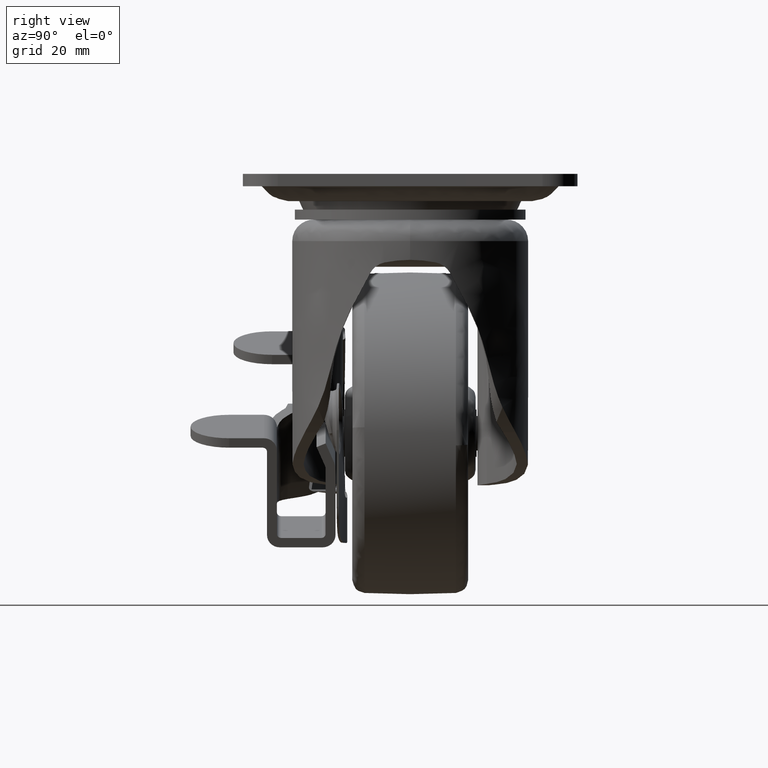
[diagram: clean part render]
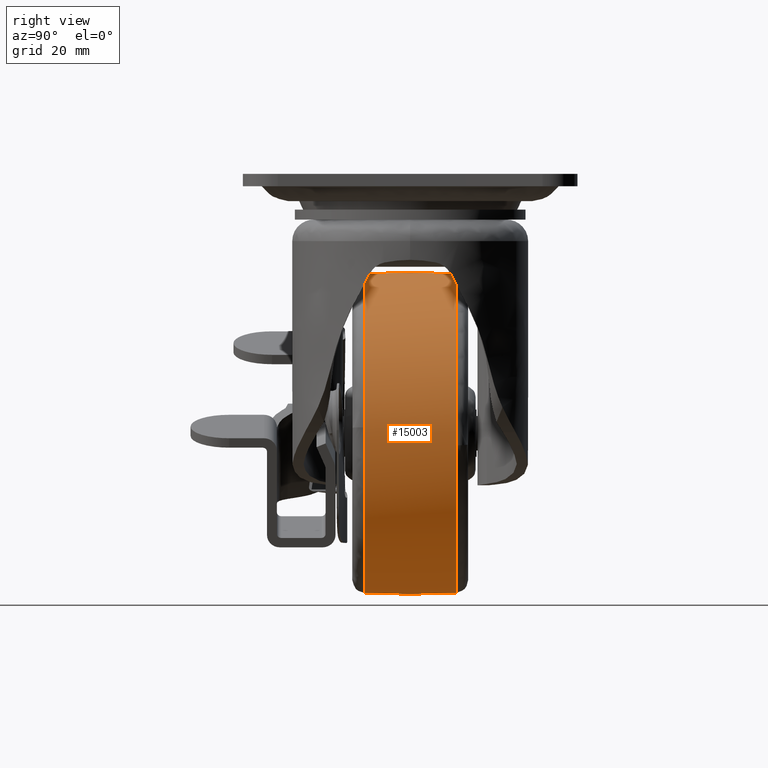
[diagram: same view with one face highlighted and labeled with its STEP entity id]
A machine part, right view. The second image highlights one B-rep face of the part: STEP entity #15003.
In plain terms, the highlighted face is a freeform B-spline surface patch.
Its self-contained STEP definition (entity closure, byte-faithful):
#13894=CARTESIAN_POINT('',(-37.109980353063378,10.659907045838009,-57.696659155735617));
#13895=VERTEX_POINT('',#13894);
#13907=CARTESIAN_POINT('',(-36.966803520436791,10.659907205023050,-56.202931402761443));
#13908=VERTEX_POINT('',#13907);
#13909=CARTESIAN_POINT('',(-36.966803520436791,10.659907205023050,-56.202931402761443));
#13910=CARTESIAN_POINT('',(-37.024561914994649,10.659907152789780,-56.699811235788317));
#13911=CARTESIAN_POINT('',(-37.072300218723868,10.659907099713701,-57.197855159017273));
#13912=CARTESIAN_POINT('',(-37.109980353063378,10.659907045838009,-57.696659155735617));
#13913=B_SPLINE_CURVE_WITH_KNOTS('',3,(#13909,#13910,#13911,#13912),.UNSPECIFIED.,.F.,.U.,(4,4),(3.163358E-011,1.500677216047689),.UNSPECIFIED.);
#13914=EDGE_CURVE('',#13908,#13895,#13913,.T.);
#13916=CARTESIAN_POINT('',(0.0,10.659905010740991,-23.284285983396082));
#13917=VERTEX_POINT('',#13916);
#13934=CARTESIAN_POINT('',(37.109980734808822,10.659901494251081,-63.303340873028922));
#13935=VERTEX_POINT('',#13934);
#13936=CARTESIAN_POINT('',(37.109980734808822,10.659901494251081,-63.303340873028922));
#13937=CARTESIAN_POINT('',(37.333079486294892,10.659901753069120,-60.360160390538610));
#13938=CARTESIAN_POINT('',(37.149999112414093,10.659902120035850,-56.186770626406883));
#13939=CARTESIAN_POINT('',(35.963578164168872,10.659902607533979,-50.641892122192097));
#13940=CARTESIAN_POINT('',(34.706324419770397,10.659902940985500,-46.848820231499921));
#13941=CARTESIAN_POINT('',(32.864471173221723,10.659903291581500,-42.860327174627280));
#13942=CARTESIAN_POINT('',(30.114503842833312,10.659903687307470,-38.357904997523050));
#13943=CARTESIAN_POINT('',(26.513733774196339,10.659904056102970,-34.161089200161918));
#13944=CARTESIAN_POINT('',(22.432330186035930,10.659904360624230,-30.694848777456109));
#13945=CARTESIAN_POINT('',(18.302557402761192,10.659904600973560,-27.958352263315302));
#13946=CARTESIAN_POINT('',(13.828081538570920,10.659904789237290,-25.813923049478539));
#13947=CARTESIAN_POINT('',(9.330976537480492,10.659904913611561,-24.396045246700201));
#13948=CARTESIAN_POINT('',(4.865995072777115,10.659904991315949,-23.508935251755840));
#13949=CARTESIAN_POINT('',(1.834728752286579,10.659905010873629,-23.284188550909189));
#13950=CARTESIAN_POINT('',(0.0,10.659905010740991,-23.284285983396082));
#13951=B_SPLINE_CURVE_WITH_KNOTS('',3,(#13936,#13937,#13938,#13939,#13940,#13941,#13942,#13943,#13944,#13945,#13946,#13947,#13948,#13949,#13950),.UNSPECIFIED.,.F.,.U.,(4,1,1,1,1,1,1,1,1,1,1,1,4),(0.000000109586594,8.854616858987242,12.444318883941101,16.991309837497202,20.820343086300419,25.606623448434590,32.785965412841954,37.332988811350802,41.640631216820502,47.623511779815772,52.170483981775618,55.760237169650523,61.264411400106383),.UNSPECIFIED.);
#13952=EDGE_CURVE('',#13935,#13917,#13951,.T.);
#14011=CARTESIAN_POINT('',(0.0,10.659898477157361,-97.715714365336495));
#14012=VERTEX_POINT('',#14011);
#14013=CARTESIAN_POINT('',(0.0,10.659898477157361,-97.715714365336495));
#14014=CARTESIAN_POINT('',(2.101449916945054,10.659898477143260,-97.715875173603891));
#14015=CARTESIAN_POINT('',(5.797050483412011,10.659898504676351,-97.401838063970928));
#14016=CARTESIAN_POINT('',(10.953802640894210,10.659898612284110,-96.174485690929743));
#14017=CARTESIAN_POINT('',(15.910820478060471,10.659898776936350,-94.296494117845455));
#14018=CARTESIAN_POINT('',(20.477781054350199,10.659899001495020,-91.735224742855522));
#14019=CARTESIAN_POINT('',(24.443800003504169,10.659899269801050,-88.674973777156424));
#14020=CARTESIAN_POINT('',(27.765499137041889,10.659899554450829,-85.428323123415154));
#14021=CARTESIAN_POINT('',(30.340675953131441,10.659899838720470,-82.185988122396026));
#14022=CARTESIAN_POINT('',(32.999949648069659,10.659900210390500,-77.946812955814181));
#14023=CARTESIAN_POINT('',(35.057201587300177,10.659900604906319,-73.447023102979799));
#14024=CARTESIAN_POINT('',(36.535003690083833,10.659901071181510,-68.128790103697156));
#14025=CARTESIAN_POINT('',(36.989944924839790,10.659901354877301,-64.893010771451415));
#14026=CARTESIAN_POINT('',(37.109980734808822,10.659901494251081,-63.303340873028922));
#14027=B_SPLINE_CURVE_WITH_KNOTS('',3,(#14013,#14014,#14015,#14016,#14017,#14018,#14019,#14020,#14021,#14022,#14023,#14024,#14025,#14026),.UNSPECIFIED.,.F.,.U.,(4,1,1,1,1,1,1,1,1,1,1,4),(0.000000092116473,6.304331871828211,11.086984801857209,15.869637154988130,22.174009474737250,26.739285945328021,30.869660891977269,36.087065070820628,39.130571816221497,45.869745436309969,50.869798589803459,55.652387787320812),.UNSPECIFIED.);
#14028=EDGE_CURVE('',#14012,#13935,#14027,.T.);
#14030=CARTESIAN_POINT('',(-37.109980353063378,10.659907045838009,-57.696659155735617));
#14031=CARTESIAN_POINT('',(-37.333090370922598,10.659906723885401,-60.639836850939332));
#14032=CARTESIAN_POINT('',(-37.139419386680061,10.659906185867291,-65.054011644045772));
#14033=CARTESIAN_POINT('',(-35.829064375242581,10.659905363087731,-70.901894559430545));
#14034=CARTESIAN_POINT('',(-34.057060963594452,10.659904595166530,-75.871247791341773));
#14035=CARTESIAN_POINT('',(-31.422402067710092,10.659903750233759,-80.729349237902753));
#14036=CARTESIAN_POINT('',(-27.918117952979269,10.659902848641289,-85.296503700673853));
#14037=CARTESIAN_POINT('',(-24.546031441335519,10.659902109290069,-88.598221263194361));
#14038=CARTESIAN_POINT('',(-20.168222094015981,10.659901259633520,-91.945186813611897));
#14039=CARTESIAN_POINT('',(-15.396747566195851,10.659900452226740,-94.581620428633087));
#14040=CARTESIAN_POINT('',(-10.033116272188931,10.659899673704420,-96.444771717813609));
#14041=CARTESIAN_POINT('',(-5.105314334302199,10.659899038589680,-97.473335714934336));
#14042=CARTESIAN_POINT('',(-1.834727398267994,10.659898668687410,-97.715820973251795));
#14043=CARTESIAN_POINT('',(0.0,10.659898477157361,-97.715714365336495));
#14044=B_SPLINE_CURVE_WITH_KNOTS('',3,(#14030,#14031,#14032,#14033,#14034,#14035,#14036,#14037,#14038,#14039,#14040,#14041,#14042,#14043),.UNSPECIFIED.,.F.,.U.,(4,1,1,1,1,1,1,1,1,1,1,4),(0.000000109484276,8.854616865430081,13.162264837299400,17.948572721915369,24.649371286210229,29.674975949196210,35.179118956975529,38.768866738041062,46.187623629292332,51.452536658638437,55.760237210771287,61.264411445295053),.UNSPECIFIED.);
#14045=EDGE_CURVE('',#13895,#14012,#14044,.T.);
#14085=CARTESIAN_POINT('',(10.069735967800030,-10.659898532963270,-96.327500795412334));
#14086=VERTEX_POINT('',#14085);
#14087=CARTESIAN_POINT('',(37.189271541351353,-10.659899947527540,-59.097332928867893));
#14088=VERTEX_POINT('',#14087);
#14089=CARTESIAN_POINT('',(10.069735967800030,-10.659898532963270,-96.327500795412334));
#14090=CARTESIAN_POINT('',(12.622353101732530,-10.659898559872030,-95.610523831957437));
#14091=CARTESIAN_POINT('',(16.486138284115480,-10.659898618235999,-94.062623817635711));
#14092=CARTESIAN_POINT('',(21.629803849804080,-10.659898736966881,-90.925391768846396));
#14093=CARTESIAN_POINT('',(25.905110561115091,-10.659898868896979,-87.445591694321422));
#14094=CARTESIAN_POINT('',(29.740085474213551,-10.659899032926090,-83.125508474873158));
#14095=CARTESIAN_POINT('',(32.746696243803349,-10.659899211380541,-78.430518334560105));
#14096=CARTESIAN_POINT('',(34.779620735387709,-10.659899379349300,-74.014825785259532));
#14097=CARTESIAN_POINT('',(35.990707575860426,-10.659899525092101,-70.185804719754927));
#14098=CARTESIAN_POINT('',(37.041782752761399,-10.659899710560200,-65.315206608906308));
#14099=CARTESIAN_POINT('',(37.289708615090071,-10.659899846527081,-61.746835923272052));
#14100=CARTESIAN_POINT('',(37.189271541351353,-10.659899947527540,-59.097332928867893));
#14101=B_SPLINE_CURVE_WITH_KNOTS('',3,(#14089,#14090,#14091,#14092,#14093,#14094,#14095,#14096,#14097,#14098,#14099,#14100),.UNSPECIFIED.,.F.,.U.,(4,1,1,1,1,1,1,1,1,4),(0.000000071028097,7.954063405339674,12.416130988919161,18.042204932560921,24.444290357489120,29.682274273922229,34.726358215849537,38.994418934807030,41.710462290640542,49.664522068488317),.UNSPECIFIED.);
#14102=EDGE_CURVE('',#14086,#14088,#14101,.T.);
#14185=CARTESIAN_POINT('',(0.0,-10.659898477157340,-97.715714365336453));
#14186=VERTEX_POINT('',#14185);
#14187=CARTESIAN_POINT('',(0.0,-10.659898477157340,-97.715714365336453));
#14188=CARTESIAN_POINT('',(3.399006450980416,-10.659898477135799,-97.716250707497139));
#14189=CARTESIAN_POINT('',(6.797715983534757,-10.659898495956410,-97.248073843471317));
#14190=CARTESIAN_POINT('',(10.069735967800030,-10.659898532963270,-96.327500795412334));
#14191=B_SPLINE_CURVE_WITH_KNOTS('',3,(#14187,#14188,#14189,#14190),.UNSPECIFIED.,.F.,.U.,(4,4),(2.173593E-009,10.196872120510120),.UNSPECIFIED.);
#14192=EDGE_CURVE('',#14186,#14086,#14191,.T.);
#14260=CARTESIAN_POINT('',(0.0,-10.659901308400510,-23.284285785782231));
#14261=VERTEX_POINT('',#14260);
#14262=CARTESIAN_POINT('',(37.189271541351353,-10.659899947527540,-59.097332928867893));
#14263=CARTESIAN_POINT('',(37.108278608515462,-10.659900029337130,-56.944412571639603));
#14264=CARTESIAN_POINT('',(36.654042729614588,-10.659900167108610,-53.318787441377111));
#14265=CARTESIAN_POINT('',(35.138572165592869,-10.659900374184261,-47.869335679589987));
#14266=CARTESIAN_POINT('',(33.049359043174519,-10.659900555852040,-43.088525528917927));
#14267=CARTESIAN_POINT('',(29.876334990796970,-10.659900747447450,-38.046454686253817));
#14268=CARTESIAN_POINT('',(26.185836273428411,-10.659900907207810,-33.842166021581477));
#14269=CARTESIAN_POINT('',(22.067466947184059,-10.659901037599701,-30.410742745653071));
#14270=CARTESIAN_POINT('',(18.493476917320049,-10.659901124440641,-28.125416817545592));
#14271=CARTESIAN_POINT('',(14.370563855487790,-10.659901202872550,-26.061379603830261));
#14272=CARTESIAN_POINT('',(9.800546287475227,-10.659901263982610,-24.453209959607371));
#14273=CARTESIAN_POINT('',(4.680292143198903,-10.659901301121760,-23.475816171809370));
#14274=CARTESIAN_POINT('',(1.485800456223709,-10.659901308402560,-23.284252511529271));
#14275=CARTESIAN_POINT('',(0.0,-10.659901308400510,-23.284285785782231));
#14276=B_SPLINE_CURVE_WITH_KNOTS('',3,(#14262,#14263,#14264,#14265,#14266,#14267,#14268,#14269,#14270,#14271,#14272,#14273,#14274,#14275),.UNSPECIFIED.,.F.,.U.,(4,1,1,1,1,1,1,1,1,1,1,4),(0.000000096938052,6.463295394550137,10.920758588153250,16.938334008226949,22.064426866775921,28.750506848384038,33.653727717052313,38.111196339329332,41.454306384173357,47.471893433545560,52.597984544578381,57.055393151970407),.UNSPECIFIED.);
#14277=EDGE_CURVE('',#14088,#14261,#14276,.T.);
#14279=CARTESIAN_POINT('',(-36.966803549138383,-10.659906344842870,-56.202931252039619));
#14280=VERTEX_POINT('',#14279);
#14297=CARTESIAN_POINT('',(-36.966803549138383,-10.659906344842870,-56.202931252039619));
#14298=CARTESIAN_POINT('',(-37.297621506352399,-10.659906075652779,-59.044167013652320));
#14299=CARTESIAN_POINT('',(-37.298728252267573,-10.659905597474459,-63.568909629000572));
#14300=CARTESIAN_POINT('',(-36.238398468269089,-10.659904884486309,-69.369844918802386));
#14301=CARTESIAN_POINT('',(-34.921162746477762,-10.659904314505591,-73.589101112171861));
#14302=CARTESIAN_POINT('',(-33.008783827676240,-10.659903675180709,-77.934409999657063));
#14303=CARTESIAN_POINT('',(-30.353585129717050,-10.659902967117420,-82.268535798610884));
#14304=CARTESIAN_POINT('',(-27.194940465822210,-10.659902271722819,-86.034497145925528));
#14305=CARTESIAN_POINT('',(-23.498013985603670,-10.659901556503740,-89.508668528286250));
#14306=CARTESIAN_POINT('',(-19.690804690933120,-10.659900911276690,-92.222487497540030));
#14307=CARTESIAN_POINT('',(-15.119680714560380,-10.659900228902400,-94.607465120710373));
#14308=CARTESIAN_POINT('',(-10.364499208101901,-10.659899592640450,-96.392306267576615));
#14309=CARTESIAN_POINT('',(-5.148683671548854,-10.659898985604981,-97.490459457750234));
#14310=CARTESIAN_POINT('',(-1.552767849258533,-10.659898623314801,-97.715734286227757));
#14311=CARTESIAN_POINT('',(0.0,-10.659898477157340,-97.715714365336453));
#14312=B_SPLINE_CURVE_WITH_KNOTS('',3,(#14297,#14298,#14299,#14300,#14301,#14302,#14303,#14304,#14305,#14306,#14307,#14308,#14309,#14310,#14311),.UNSPECIFIED.,.F.,.U.,(4,1,1,1,1,1,1,1,1,1,1,1,4),(0.000000106621705,8.581145449860486,13.484677653118480,17.652694774593868,21.820709127944529,27.704916348564751,32.853534876118928,36.531197742696833,42.905825091171351,46.828645207573722,51.977369007824592,58.106775339287651,62.765095197929377),.UNSPECIFIED.);
#14313=EDGE_CURVE('',#14280,#14186,#14312,.T.);
#14932=CARTESIAN_POINT('',(-36.907614048907398,-11.723085496220492,-56.209797278536143));
#14933=CARTESIAN_POINT('',(-37.591347148147413,-0.000003837475083,-56.130319000714451));
#14934=CARTESIAN_POINT('',(-36.907614495000516,11.723077847639651,-56.209797226681523));
#14935=CARTESIAN_POINT('',(-37.156127545458261,-11.723085496220497,-58.347700965640783));
#14936=CARTESIAN_POINT('',(-37.844464488852871,-0.000003837475084,-58.307828486013584));
#14937=CARTESIAN_POINT('',(-37.156127994555099,11.723077847639654,-58.347700939626471));
#14938=CARTESIAN_POINT('',(-37.156127545458290,-11.723085496220493,-60.500000000000007));
#14939=CARTESIAN_POINT('',(-37.844464488852886,-0.000003837475083,-60.499999999999986));
#14940=CARTESIAN_POINT('',(-37.156127994555121,11.723077847639662,-60.500000000000000));
#14941=CARTESIAN_POINT('',(-37.156127545458261,-11.723085496220490,-97.656127545458261));
#14942=CARTESIAN_POINT('',(-37.844464488852879,-0.000003837475084,-98.344464488852893));
#14943=CARTESIAN_POINT('',(-37.156127994555099,11.723077847639656,-97.656127994555135));
#14944=CARTESIAN_POINT('',(0.0,-11.723085496220493,-97.656127545458276));
#14945=CARTESIAN_POINT('',(0.0,-0.000003837475083,-98.344464488852893));
#14946=CARTESIAN_POINT('',(0.0,11.723077847639662,-97.656127994555135));
#14947=CARTESIAN_POINT('',(37.156127545458261,-11.723085496220490,-97.656127545458276));
#14948=CARTESIAN_POINT('',(37.844464488852879,-0.000003837475084,-98.344464488852907));
#14949=CARTESIAN_POINT('',(37.156127994555099,11.723077847639656,-97.656127994555135));
#14950=CARTESIAN_POINT('',(37.156127545458290,-11.723085496220493,-60.500000000000007));
#14951=CARTESIAN_POINT('',(37.844464488852886,-0.000003837475083,-60.499999999999986));
#14952=CARTESIAN_POINT('',(37.156127994555121,11.723077847639662,-60.500000000000000));
#14953=CARTESIAN_POINT('',(37.156127545458261,-11.723085496220490,-23.343872454541728));
#14954=CARTESIAN_POINT('',(37.844464488852879,-0.000003837475084,-22.655535511147121));
#14955=CARTESIAN_POINT('',(37.156127994555099,11.723077847639656,-23.343872005444886));
#14956=CARTESIAN_POINT('',(0.0,-11.723085496220493,-23.343872454541732));
#14957=CARTESIAN_POINT('',(0.0,-0.000003837475083,-22.655535511147114));
#14958=CARTESIAN_POINT('',(0.0,11.723077847639662,-23.343872005444876));
#14966=(BOUNDED_SURFACE()B_SPLINE_SURFACE(2,2,((#14932,#14935,#14938,#14941,#14944,#14947,#14950,#14953,#14956),(#14933,#14936,#14939,#14942,#14945,#14948,#14951,#14954,#14957),(#14934,#14937,#14940,#14943,#14946,#14949,#14952,#14955,#14958)),.UNSPECIFIED.,.F.,.F.,.U.)B_SPLINE_SURFACE_WITH_KNOTS((3,3),(3,2,2,2,3),(0.0,23.466336897857250),(0.0,4.970561711536941,67.102596067501125,129.234630423465290,191.366664779429500),.UNSPECIFIED.)GEOMETRIC_REPRESENTATION_ITEM()RATIONAL_B_SPLINE_SURFACE(((0.867924190106564,0.885776731613130,0.907029756371665,0.641366891468386,0.907029756371665,0.641366891468386,0.907029756371665,0.641366891468386,0.907029756371665),(0.866431914486171,0.884253761016429,0.905470244137954,0.640264149792586,0.905470244137954,0.640264149792586,0.905470244137954,0.640264149792586,0.905470244137954),(0.867924189131271,0.885776730617775,0.907029755352428,0.641366890747677,0.907029755352428,0.641366890747677,0.907029755352428,0.641366890747677,0.907029755352428)))REPRESENTATION_ITEM('')SURFACE());
#14967=ORIENTED_EDGE('',*,*,#13914,.T.);
#14968=ORIENTED_EDGE('',*,*,#14045,.T.);
#14969=ORIENTED_EDGE('',*,*,#14028,.T.);
#14970=ORIENTED_EDGE('',*,*,#13952,.T.);
#14971=CARTESIAN_POINT('',(0.0,-10.659901308400512,-23.284285785782227));
#14972=CARTESIAN_POINT('',(0.0,0.000001856444100,-22.715309447883790));
#14973=CARTESIAN_POINT('',(0.0,10.659905010740992,-23.284285983396085));
#14981=(BOUNDED_CURVE()B_SPLINE_CURVE(2,(#14971,#14972,#14973),.UNSPECIFIED.,.F.,.U.)B_SPLINE_CURVE_WITH_KNOTS((3,3),(0.458541809993038,0.541458204426497),.UNSPECIFIED.)CURVE()GEOMETRIC_REPRESENTATION_ITEM()RATIONAL_B_SPLINE_CURVE((0.906894543069495,0.905605456706327,0.906894543517851))REPRESENTATION_ITEM(''));
#14982=EDGE_CURVE('',#14261,#13917,#14981,.T.);
#14983=ORIENTED_EDGE('',*,*,#14982,.F.);
#14984=ORIENTED_EDGE('',*,*,#14277,.F.);
#14985=ORIENTED_EDGE('',*,*,#14102,.F.);
#14986=ORIENTED_EDGE('',*,*,#14192,.F.);
#14987=ORIENTED_EDGE('',*,*,#14313,.F.);
#14988=CARTESIAN_POINT('',(-36.966803549138376,-10.659906344842868,-56.202931252039619));
#14989=CARTESIAN_POINT('',(-37.531974835468915,0.000000431315390,-56.137234857005026));
#14990=CARTESIAN_POINT('',(-36.966803520436791,10.659907205023051,-56.202931402761436));
#14998=(BOUNDED_CURVE()B_SPLINE_CURVE(2,(#14988,#14989,#14990),.UNSPECIFIED.,.F.,.U.)B_SPLINE_CURVE_WITH_KNOTS((3,3),(0.458541790377564,0.541458212972587),.UNSPECIFIED.)CURVE()GEOMETRIC_REPRESENTATION_ITEM()RATIONAL_B_SPLINE_CURVE((0.867794799509682,0.866561289661050,0.867794799609359))REPRESENTATION_ITEM(''));
#14999=EDGE_CURVE('',#14280,#13908,#14998,.T.);
#15000=ORIENTED_EDGE('',*,*,#14999,.T.);
#15001=EDGE_LOOP('',(#14967,#14968,#14969,#14970,#14983,#14984,#14985,#14986,#14987,#15000));
#15002=FACE_OUTER_BOUND('',#15001,.T.);
#15003=ADVANCED_FACE('',(#15002),#14966,.T.);